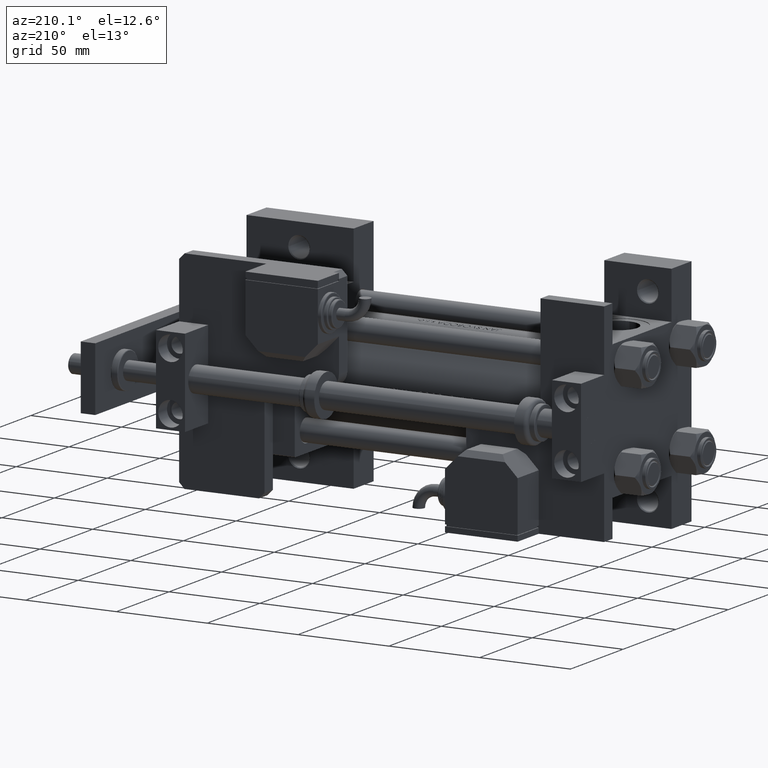
[diagram: clean part render]
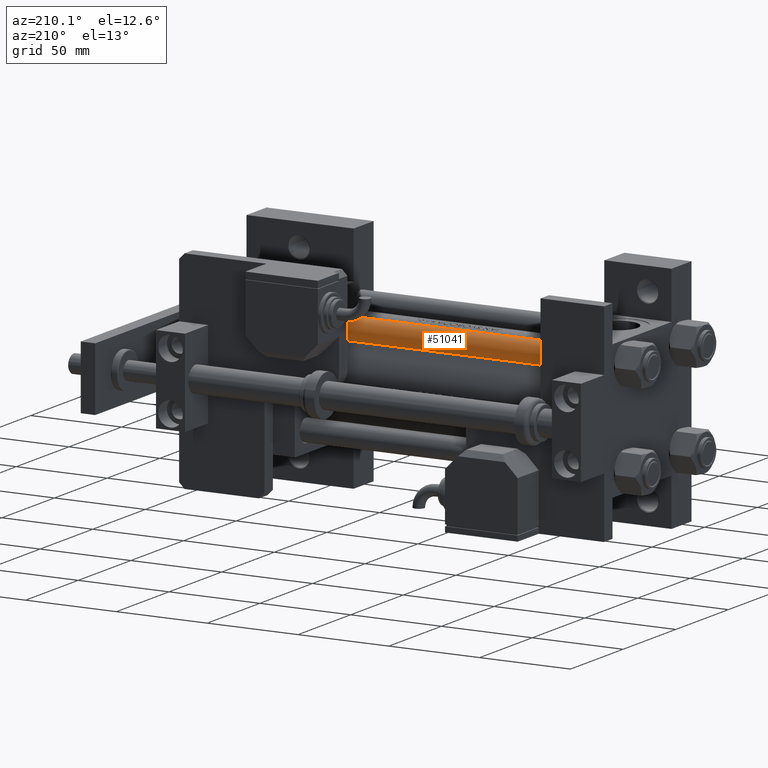
[diagram: same view with one face highlighted and labeled with its STEP entity id]
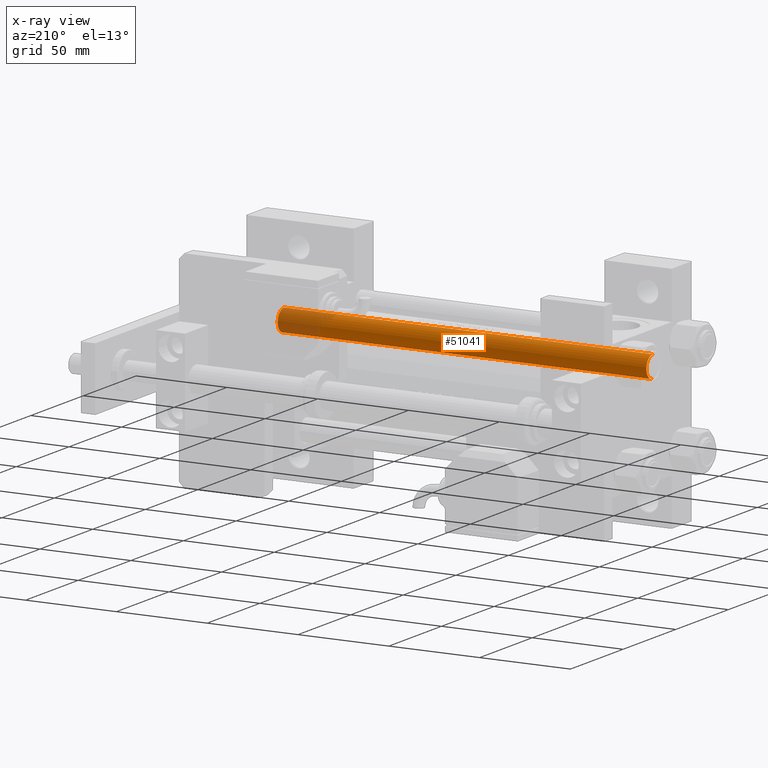
[diagram: x-ray of the same camera — body ghosted, the highlighted face saturated]
A machine part, auxiliary view. The second image highlights one B-rep face of the part: STEP entity #51041.
The next image is the same camera in x-ray: the body ghosted, the highlighted face saturated — about 13% of this face is hidden behind the body in this view.
In plain terms, the highlighted cylindrical surface (edge-blend (fillet) strip) has radius 6 mm, axis along (-1, 0, -0).
Its self-contained STEP definition (entity closure, byte-faithful):
#727 = EDGE_CURVE ( 'NONE', #25480, #19591, #4910, .T. ) ;
#2757 = VECTOR ( 'NONE', #10877, 1000.000000000000000 ) ;
#2880 = DIRECTION ( 'NONE',  ( 0.000000000000000000, 0.000000000000000000, -1.000000000000000000 ) ) ;
#4458 = VERTEX_POINT ( 'NONE', #40223 ) ;
#4910 = CIRCLE ( 'NONE', #30721, 6.000000000000000888 ) ;
#5708 = CARTESIAN_POINT ( 'NONE',  ( 0.000000000000000000, 0.000000000000000000, 204.0000000000000000 ) ) ;
#10035 = DIRECTION ( 'NONE',  ( -1.000000000000000000, 0.000000000000000000, 0.000000000000000000 ) ) ;
#10877 = DIRECTION ( 'NONE',  ( -0.000000000000000000, -0.000000000000000000, -1.000000000000000000 ) ) ;
#11947 = LINE ( 'NONE', #31623, #2757 ) ;
#14338 = DIRECTION ( 'NONE',  ( -0.000000000000000000, -0.000000000000000000, -1.000000000000000000 ) ) ;
#14609 = CYLINDRICAL_SURFACE ( 'NONE', #42567, 6.000000000000000888 ) ;
#14745 = DIRECTION ( 'NONE',  ( 1.000000000000000000, 0.000000000000000000, 0.000000000000000000 ) ) ;
#16857 = CARTESIAN_POINT ( 'NONE',  ( 6.000000000000000888, 7.347880794884120722E-16, 0.5000000000000281997 ) ) ;
#19591 = VERTEX_POINT ( 'NONE', #37935 ) ;
#20140 = VECTOR ( 'NONE', #37237, 1000.000000000000000 ) ;
#21700 = CIRCLE ( 'NONE', #34560, 6.000000000000000888 ) ;
#23150 = DIRECTION ( 'NONE',  ( 1.000000000000000000, 0.000000000000000000, 0.000000000000000000 ) ) ;
#25296 = EDGE_CURVE ( 'NONE', #4458, #26865, #21700, .T. ) ;
#25480 = VERTEX_POINT ( 'NONE', #32021 ) ;
#26043 = EDGE_CURVE ( 'NONE', #19591, #4458, #11947, .T. ) ;
#26865 = VERTEX_POINT ( 'NONE', #16857 ) ;
#27028 = FACE_OUTER_BOUND ( 'NONE', #30342, .T. ) ;
#28112 = CARTESIAN_POINT ( 'NONE',  ( 6.000000000000000888, 7.347880794884120722E-16, 204.0000000000000000 ) ) ;
#30342 = EDGE_LOOP ( 'NONE', ( #41685, #33664, #47756, #52395 ) ) ;
#30721 = AXIS2_PLACEMENT_3D ( 'NONE', #35227, #2880, #14745 ) ;
#31623 = CARTESIAN_POINT ( 'NONE',  ( -6.000000000000000888, 0.000000000000000000, 204.0000000000000000 ) ) ;
#31738 = EDGE_CURVE ( 'NONE', #25480, #26865, #36444, .T. ) ;
#32021 = CARTESIAN_POINT ( 'NONE',  ( 6.000000000000000888, 7.347880794884120722E-16, 203.5000000000000000 ) ) ;
#33664 = ORIENTED_EDGE ( 'NONE', *, *, #727, .T. ) ;
#34560 = AXIS2_PLACEMENT_3D ( 'NONE', #38758, #43609, #23150 ) ;
#35227 = CARTESIAN_POINT ( 'NONE',  ( 0.000000000000000000, 0.000000000000000000, 203.5000000000000000 ) ) ;
#36444 = LINE ( 'NONE', #28112, #20140 ) ;
#37237 = DIRECTION ( 'NONE',  ( -0.000000000000000000, -0.000000000000000000, -1.000000000000000000 ) ) ;
#37935 = CARTESIAN_POINT ( 'NONE',  ( -6.000000000000000888, 0.000000000000000000, 203.5000000000000000 ) ) ;
#38758 = CARTESIAN_POINT ( 'NONE',  ( 0.000000000000000000, 0.000000000000000000, 0.5000000000000281997 ) ) ;
#40223 = CARTESIAN_POINT ( 'NONE',  ( -6.000000000000000888, 0.000000000000000000, 0.5000000000000281997 ) ) ;
#41685 = ORIENTED_EDGE ( 'NONE', *, *, #31738, .F. ) ;
#42567 = AXIS2_PLACEMENT_3D ( 'NONE', #5708, #14338, #10035 ) ;
#43609 = DIRECTION ( 'NONE',  ( -0.000000000000000000, -0.000000000000000000, 1.000000000000000000 ) ) ;
#47756 = ORIENTED_EDGE ( 'NONE', *, *, #26043, .T. ) ;
#51041 = ADVANCED_FACE ( 'NONE', ( #27028 ), #14609, .T. ) ;
#52395 = ORIENTED_EDGE ( 'NONE', *, *, #25296, .T. ) ;